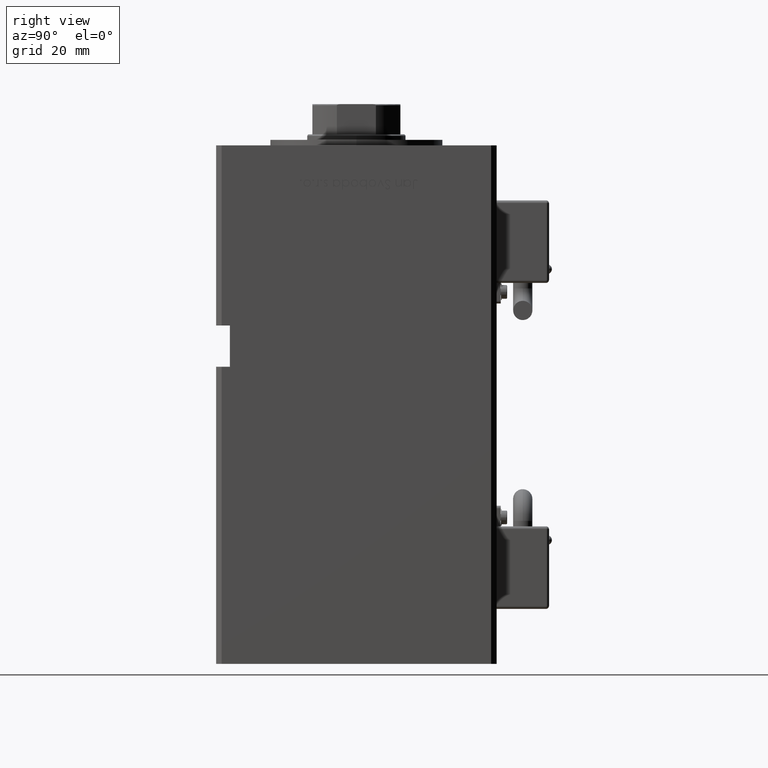
[diagram: clean part render]
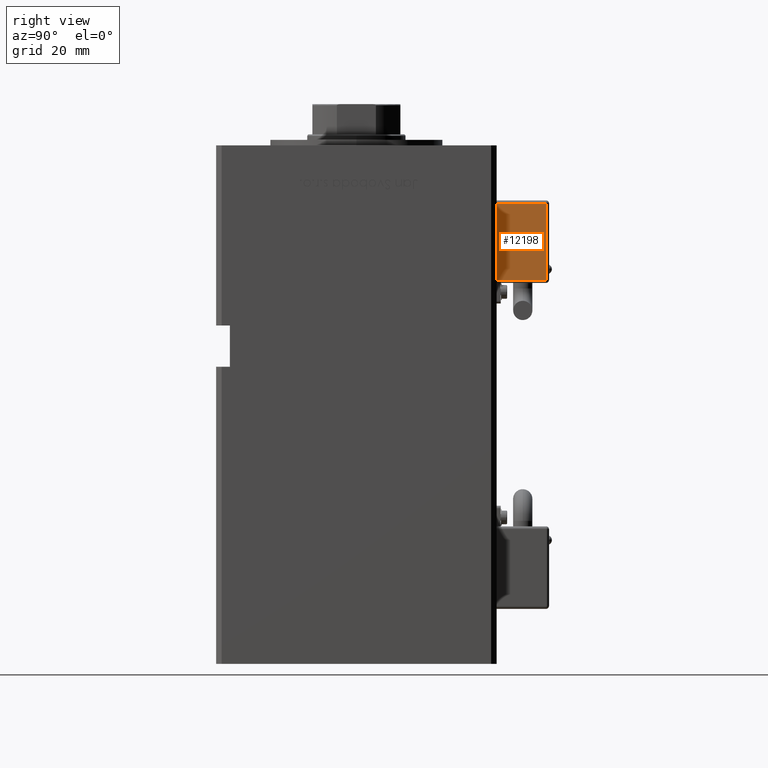
[diagram: same view with one face highlighted and labeled with its STEP entity id]
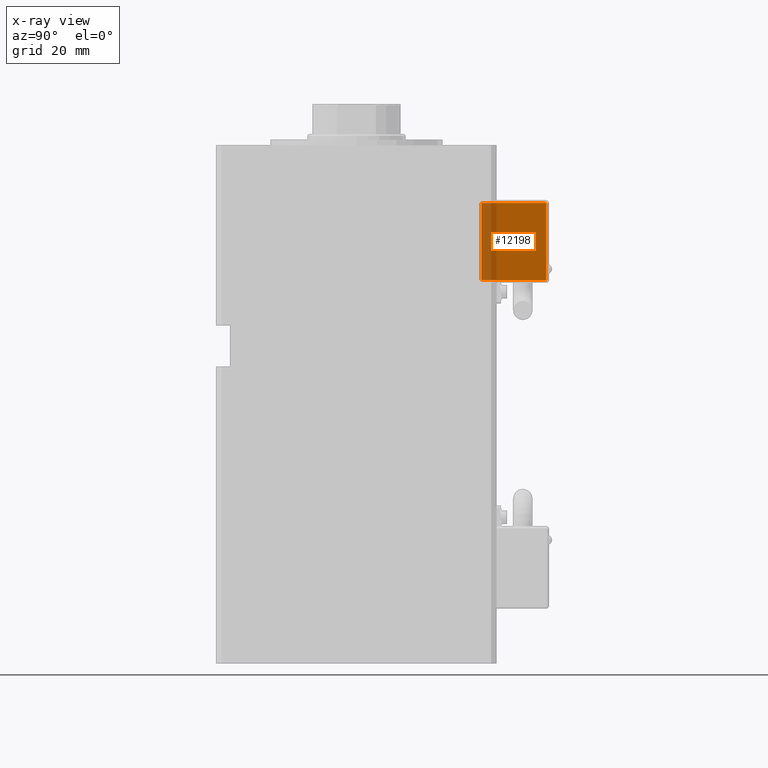
[diagram: x-ray of the same camera — body ghosted, the highlighted face saturated]
A machine part, right view. The second image highlights one B-rep face of the part: STEP entity #12198.
The next image is the same camera in x-ray: the body ghosted, the highlighted face saturated — about 23% of this face is hidden behind the body in this view.
In plain terms, the highlighted planar face has unit normal (1, 0, 0).
Its self-contained STEP definition (entity closure, byte-faithful):
#25 = DIRECTION ( 'NONE',  ( 1.000000000000000000, 4.930380657629929601E-32, 1.094764425253299406E-47 ) ) ;
#366 = ORIENTED_EDGE ( 'NONE', *, *, #5106, .T. ) ;
#1367 = CARTESIAN_POINT ( 'NONE',  ( 10.80000000000000071, 26.00000000000000000, -26.00000000000000000 ) ) ;
#2064 = LINE ( 'NONE', #19460, #23082 ) ;
#2787 = CARTESIAN_POINT ( 'NONE',  ( 10.80000000000000071, 50.50000000000000000, -25.00000000000000000 ) ) ;
#4636 = VECTOR ( 'NONE', #50659, 1000.000000000000000 ) ;
#5083 = DIRECTION ( 'NONE',  ( 3.108624468950000014E-32, -1.000000000000000000, -1.400000000000000069E-16 ) ) ;
#5106 = EDGE_CURVE ( 'NONE', #31155, #51736, #27395, .T. ) ;
#8317 = PLANE ( 'NONE',  #12965 ) ;
#8339 = EDGE_CURVE ( 'NONE', #16554, #31155, #11438, .T. ) ;
#11438 = LINE ( 'NONE', #45649, #42103 ) ;
#12198 = ADVANCED_FACE ( 'NONE', ( #34814 ), #8317, .T. ) ;
#12511 = EDGE_CURVE ( 'NONE', #51736, #25834, #52674, .T. ) ;
#12965 = AXIS2_PLACEMENT_3D ( 'NONE', #29717, #25, #56200 ) ;
#15134 = EDGE_CURVE ( 'NONE', #25834, #16554, #2064, .T. ) ;
#16554 = VERTEX_POINT ( 'NONE', #50431 ) ;
#19460 = CARTESIAN_POINT ( 'NONE',  ( 10.80000000000000071, 27.00000000000000000, -55.00000000000000000 ) ) ;
#22653 = ORIENTED_EDGE ( 'NONE', *, *, #15134, .T. ) ;
#23082 = VECTOR ( 'NONE', #32014, 1000.000000000000000 ) ;
#23126 = VECTOR ( 'NONE', #5083, 1000.000000000000000 ) ;
#25834 = VERTEX_POINT ( 'NONE', #44894 ) ;
#27395 = LINE ( 'NONE', #2787, #4636 ) ;
#29717 = CARTESIAN_POINT ( 'NONE',  ( 10.80000000000000071, 26.00000000000000000, -55.00000000000000000 ) ) ;
#31155 = VERTEX_POINT ( 'NONE', #54230 ) ;
#32014 = DIRECTION ( 'NONE',  ( 2.220446049250000002E-16, 1.200000000000000024E-16, -1.000000000000000000 ) ) ;
#34814 = FACE_OUTER_BOUND ( 'NONE', #51700, .T. ) ;
#35744 = CARTESIAN_POINT ( 'NONE',  ( 10.80000000000000071, 50.50000000000000000, -26.00000000000000000 ) ) ;
#42103 = VECTOR ( 'NONE', #42231, 1000.000000000000000 ) ;
#42231 = DIRECTION ( 'NONE',  ( -3.108624468950000014E-32, 1.000000000000000000, 1.400000000000000069E-16 ) ) ;
#44894 = CARTESIAN_POINT ( 'NONE',  ( 10.80000000000000071, 27.00000000000000000, -26.00000000000000000 ) ) ;
#45342 = ORIENTED_EDGE ( 'NONE', *, *, #12511, .T. ) ;
#45649 = CARTESIAN_POINT ( 'NONE',  ( 10.80000000000000071, 51.50000000000000000, -54.00000000000000000 ) ) ;
#45856 = ORIENTED_EDGE ( 'NONE', *, *, #8339, .T. ) ;
#50431 = CARTESIAN_POINT ( 'NONE',  ( 10.80000000000000071, 27.00000000000000000, -54.00000000000000000 ) ) ;
#50659 = DIRECTION ( 'NONE',  ( -2.220446049250000002E-16, -1.200000000000000024E-16, 1.000000000000000000 ) ) ;
#51700 = EDGE_LOOP ( 'NONE', ( #45342, #22653, #45856, #366 ) ) ;
#51736 = VERTEX_POINT ( 'NONE', #35744 ) ;
#52674 = LINE ( 'NONE', #1367, #23126 ) ;
#54230 = CARTESIAN_POINT ( 'NONE',  ( 10.80000000000000071, 50.50000000000000000, -54.00000000000000000 ) ) ;
#56200 = DIRECTION ( 'NONE',  ( 0.000000000000000000, -2.220446049250000002E-16, 1.000000000000000000 ) ) ;